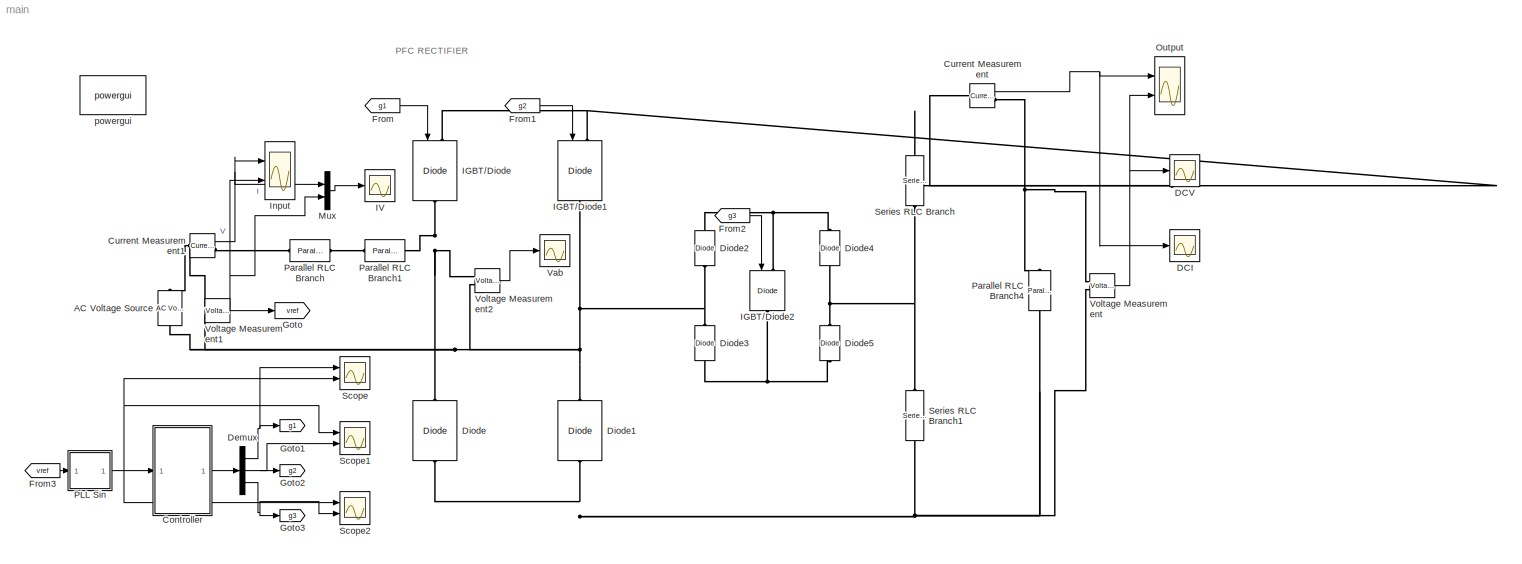
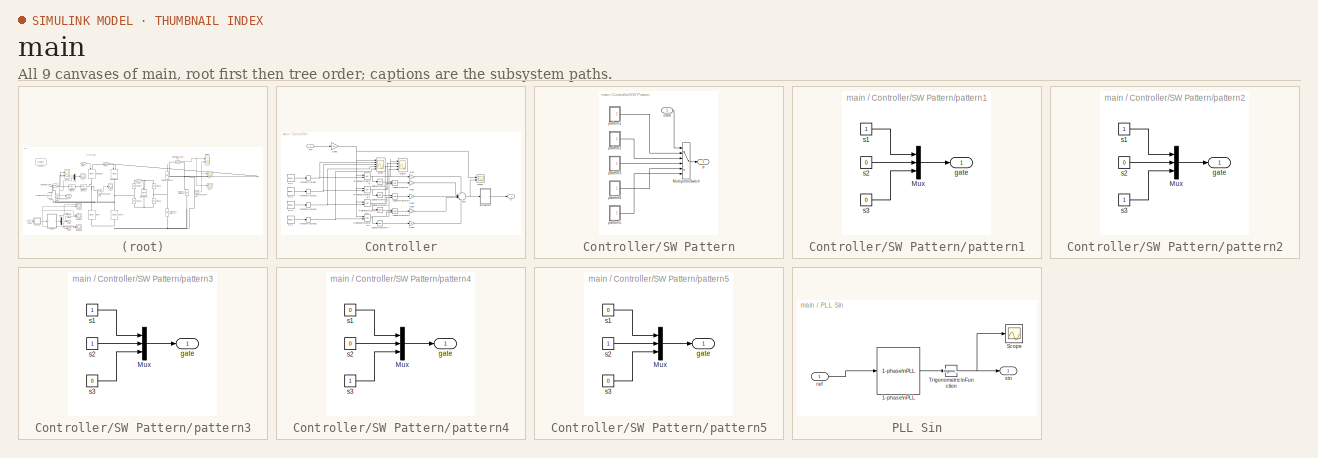
[diagram: thumbnail index - all 9 canvases of the model, root first then tree order]
MODEL main
KIND model
CONFIG InitFcn = Ts=50e-6;\nfs=5e3;\nfreq=60;\n
BLOCK [Reference] AC Voltage Source  REF=powerlib/Electrical\nSources/AC Voltage Source
  Amplitude = 200
  DialogController = POWERSYS.PowerSysDialog
  Frequency = freq
  FunctionWithSeparateData = off
  Measurements = None
  Phase = 0
  Ports = [0, 0, 0, 0, 0, 1, 1]
  RTWMemSecDataConstants = Inherit from model
  RTWMemSecDataInternal = Inherit from model
  RTWMemSecDataParameters = Inherit from model
  RTWMemSecFuncExecute = Inherit from model
  RTWMemSecFuncInitTerm = Inherit from model
  SID = 1
  SampleTime = 0
  ShowPortLabels = FromPortIcon
  SourceBlock = powerlib/Electrical\nSources/AC Voltage Source
  SourceType = AC Voltage Source
  SystemSampleTime = -1
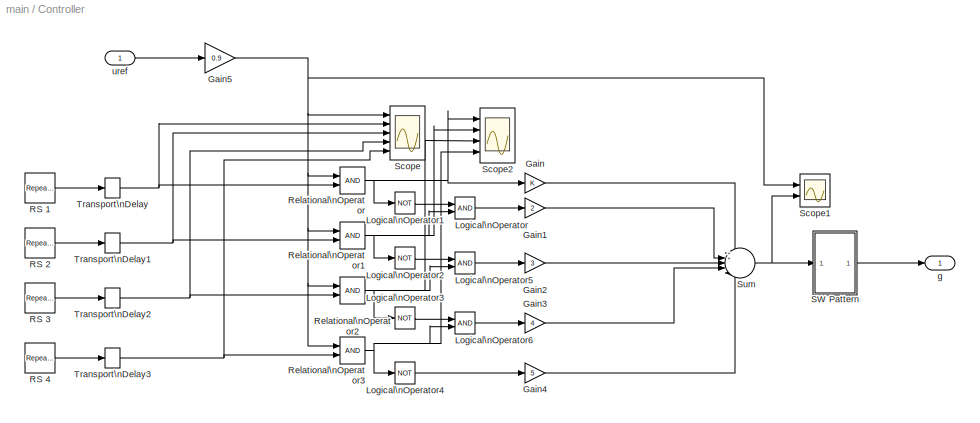
BLOCK [SubSystem] Controller
  FunctionWithSeparateData = off
  MaskHideContents = off
  MinAlgLoopOccurrences = off
  Opaque = off
  Ports = [1, 1]
  PropExecContextOutsideSubsystem = off
  RTWSystemCode = Auto
  RequestExecContextInheritance = off
  SID = 82
BLOCK [Gain] Controller/Gain
  OutDataTypeMode = Inherit via internal rule
  OutDataTypeStr = Inherit: Inherit via internal rule
  ParamDataTypeStr = Inherit: Inherit via internal rule
  ParameterDataTypeMode = Inherit via internal rule
  SID = 112
  SaturateOnIntegerOverflow = off
BLOCK [Gain] Controller/Gain1
  Gain = 2
  OutDataTypeMode = Inherit via internal rule
  OutDataTypeStr = Inherit: Inherit via internal rule
  ParamDataTypeStr = Inherit: Inherit via internal rule
  ParameterDataTypeMode = Inherit via internal rule
  SID = 113
  SaturateOnIntegerOverflow = off
BLOCK [Gain] Controller/Gain2
  Gain = 3
  OutDataTypeMode = Inherit via internal rule
  OutDataTypeStr = Inherit: Inherit via internal rule
  ParamDataTypeStr = Inherit: Inherit via internal rule
  ParameterDataTypeMode = Inherit via internal rule
  SID = 114
  SaturateOnIntegerOverflow = off
BLOCK [Gain] Controller/Gain3
  Gain = 4
  OutDataTypeMode = Inherit via internal rule
  OutDataTypeStr = Inherit: Inherit via internal rule
  ParamDataTypeStr = Inherit: Inherit via internal rule
  ParameterDataTypeMode = Inherit via internal rule
  SID = 115
  SaturateOnIntegerOverflow = off
BLOCK [Gain] Controller/Gain4
  Gain = 5
  OutDataTypeMode = Inherit via internal rule
  OutDataTypeStr = Inherit: Inherit via internal rule
  ParamDataTypeStr = Inherit: Inherit via internal rule
  ParameterDataTypeMode = Inherit via internal rule
  SID = 116
  SaturateOnIntegerOverflow = off
BLOCK [Gain] Controller/Gain5
  Gain = 0.9
  OutDataTypeMode = Inherit via internal rule
  OutDataTypeStr = Inherit: Inherit via internal rule
  ParamDataTypeStr = Inherit: Inherit via internal rule
  ParameterDataTypeMode = Inherit via internal rule
  SID = 121
  SaturateOnIntegerOverflow = off
BLOCK [Logic] Controller/Logical\nOperator
  AllPortsSameDT = off
  OutDataTypeMode = boolean
  OutDataTypeStr = boolean
  Ports = [2, 1]
  SID = 68
BLOCK [Logic] Controller/Logical\nOperator1
  AllPortsSameDT = off
  Operator = NOT
  OutDataTypeMode = boolean
  OutDataTypeStr = boolean
  Ports = [1, 1]
  SID = 69
BLOCK [Logic] Controller/Logical\nOperator2
  AllPortsSameDT = off
  Operator = NOT
  OutDataTypeMode = boolean
  OutDataTypeStr = boolean
  Ports = [1, 1]
  SID = 70
BLOCK [Logic] Controller/Logical\nOperator3
  AllPortsSameDT = off
  Operator = NOT
  OutDataTypeMode = boolean
  OutDataTypeStr = boolean
  Ports = [1, 1]
  SID = 71
BLOCK [Logic] Controller/Logical\nOperator4
  AllPortsSameDT = off
  Operator = NOT
  OutDataTypeMode = boolean
  OutDataTypeStr = boolean
  Ports = [1, 1]
  SID = 72
BLOCK [Logic] Controller/Logical\nOperator5
  AllPortsSameDT = off
  OutDataTypeMode = boolean
  OutDataTypeStr = boolean
  Ports = [2, 1]
  SID = 74
BLOCK [Logic] Controller/Logical\nOperator6
  AllPortsSameDT = off
  OutDataTypeMode = boolean
  OutDataTypeStr = boolean
  Ports = [2, 1]
  SID = 75
BLOCK [Reference] Controller/RS 1  REF=simulink/Sources/Repeating\nSequence
  FunctionWithSeparateData = off
  Ports = [0, 1]
  RTWMemSecDataConstants = Inherit from model
  RTWMemSecDataInternal = Inherit from model
  RTWMemSecDataParameters = Inherit from model
  RTWMemSecFuncExecute = Inherit from model
  RTWMemSecFuncInitTerm = Inherit from model
  SID = 28
  ShowPortLabels = FromPortIcon
  SourceBlock = simulink/Sources/Repeating\nSequence
  SourceType = Repeating table
  SystemSampleTime = -1
  rep_seq_t = [0 (1/(fs*4))*1  (1/(fs*4))*2  (1/(fs*4))*3  (1/(fs*4))*4]
  rep_seq_y = [0.5 1 0.5 1 0.5]
BLOCK [Reference] Controller/RS 2  REF=simulink/Sources/Repeating\nSequence
  FunctionWithSeparateData = off
  Ports = [0, 1]
  RTWMemSecDataConstants = Inherit from model
  RTWMemSecDataInternal = Inherit from model
  RTWMemSecDataParameters = Inherit from model
  RTWMemSecFuncExecute = Inherit from model
  RTWMemSecFuncInitTerm = Inherit from model
  SID = 29
  ShowPortLabels = FromPortIcon
  SourceBlock = simulink/Sources/Repeating\nSequence
  SourceType = Repeating table
  SystemSampleTime = -1
  rep_seq_t = [0 (1/(fs*4))*1  (1/(fs*4))*2  (1/(fs*4))*3  (1/(fs*4))*4]
  rep_seq_y = [0 0.5 0 0.5 0]
BLOCK [Reference] Controller/RS 3  REF=simulink/Sources/Repeating\nSequence
  FunctionWithSeparateData = off
  Ports = [0, 1]
  RTWMemSecDataConstants = Inherit from model
  RTWMemSecDataInternal = Inherit from model
  RTWMemSecDataParameters = Inherit from model
  RTWMemSecFuncExecute = Inherit from model
  RTWMemSecFuncInitTerm = Inherit from model
  SID = 30
  ShowPortLabels = FromPortIcon
  SourceBlock = simulink/Sources/Repeating\nSequence
  SourceType = Repeating table
  SystemSampleTime = -1
  rep_seq_t = [0 (1/(fs*4))*1  (1/(fs*4))*2  (1/(fs*4))*3  (1/(fs*4))*4]
  rep_seq_y = [-0.5 0 -0.5 0 -0.5]
BLOCK [Reference] Controller/RS 4  REF=simulink/Sources/Repeating\nSequence
  FunctionWithSeparateData = off
  Ports = [0, 1]
  RTWMemSecDataConstants = Inherit from model
  RTWMemSecDataInternal = Inherit from model
  RTWMemSecDataParameters = Inherit from model
  RTWMemSecFuncExecute = Inherit from model
  RTWMemSecFuncInitTerm = Inherit from model
  SID = 31
  ShowPortLabels = FromPortIcon
  SourceBlock = simulink/Sources/Repeating\nSequence
  SourceType = Repeating table
  SystemSampleTime = -1
  rep_seq_t = [0 (1/(fs*4))*1  (1/(fs*4))*2  (1/(fs*4))*3  (1/(fs*4))*4]
  rep_seq_y = [-1 -0.5 -1 -0.5 -1]
BLOCK [RelationalOperator] Controller/Relational\nOperator
  InputSameDT = off
  LogicOutDataTypeMode = boolean
  OutDataTypeStr = boolean
  Ports = [2, 1]
  SID = 32
  ZeroCross = off
BLOCK [RelationalOperator] Controller/Relational\nOperator1
  InputSameDT = off
  LogicOutDataTypeMode = boolean
  OutDataTypeStr = boolean
  Ports = [2, 1]
  SID = 33
  ZeroCross = off
BLOCK [RelationalOperator] Controller/Relational\nOperator2
  InputSameDT = off
  LogicOutDataTypeMode = boolean
  OutDataTypeStr = boolean
  Ports = [2, 1]
  SID = 34
  ZeroCross = off
BLOCK [RelationalOperator] Controller/Relational\nOperator3
  InputSameDT = off
  LogicOutDataTypeMode = boolean
  OutDataTypeStr = boolean
  Ports = [2, 1]
  SID = 35
  ZeroCross = off
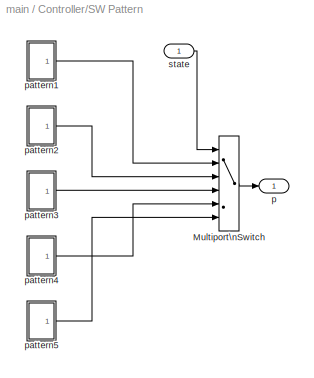
BLOCK [SubSystem] Controller/SW Pattern
  FunctionWithSeparateData = off
  MaskHideContents = off
  MinAlgLoopOccurrences = off
  Opaque = off
  Ports = [1, 1]
  PropExecContextOutsideSubsystem = off
  RTWSystemCode = Auto
  RequestExecContextInheritance = off
  SID = 78
BLOCK [MultiPortSwitch] Controller/SW Pattern/Multiport\nSwitch
  InputSameDT = off
  Inputs = 5
  Ports = [6, 1]
  SID = 77
  SaturateOnIntegerOverflow = off
  zeroidx = off
BLOCK [Outport] Controller/SW Pattern/p
  IconDisplay = Port number
  SID = 80
BLOCK [SubSystem] Controller/SW Pattern/pattern1
  FunctionWithSeparateData = off
  MaskHideContents = off
  MinAlgLoopOccurrences = off
  Opaque = off
  Ports = [0, 1]
  PropExecContextOutsideSubsystem = off
  RTWSystemCode = Auto
  RequestExecContextInheritance = off
  SID = 42
BLOCK [Mux] Controller/SW Pattern/pattern1/Mux
  DisplayOption = bar
  Inputs = 3
  Ports = [3, 1]
  SID = 40
BLOCK [Outport] Controller/SW Pattern/pattern1/gate
  IconDisplay = Port number
  SID = 43
BLOCK [Constant] Controller/SW Pattern/pattern1/s1
  SID = 37
BLOCK [Constant] Controller/SW Pattern/pattern1/s2
  SID = 38
  Value = 0
BLOCK [Constant] Controller/SW Pattern/pattern1/s3
  SID = 39
  Value = 0
BLOCK [SubSystem] Controller/SW Pattern/pattern2
  FunctionWithSeparateData = off
  MaskHideContents = off
  MinAlgLoopOccurrences = off
  Opaque = off
  Ports = [0, 1]
  PropExecContextOutsideSubsystem = off
  RTWSystemCode = Auto
  RequestExecContextInheritance = off
  SID = 44
BLOCK [Mux] Controller/SW Pattern/pattern2/Mux
  DisplayOption = bar
  Inputs = 3
  Ports = [3, 1]
  SID = 45
BLOCK [Outport] Controller/SW Pattern/pattern2/gate
  IconDisplay = Port number
  SID = 49
BLOCK [Constant] Controller/SW Pattern/pattern2/s1
  SID = 46
BLOCK [Constant] Controller/SW Pattern/pattern2/s2
  SID = 47
  Value = 0
BLOCK [Constant] Controller/SW Pattern/pattern2/s3
  SID = 48
BLOCK [SubSystem] Controller/SW Pattern/pattern3
  FunctionWithSeparateData = off
  MaskHideContents = off
  MinAlgLoopOccurrences = off
  Opaque = off
  Ports = [0, 1]
  PropExecContextOutsideSubsystem = off
  RTWSystemCode = Auto
  RequestExecContextInheritance = off
  SID = 50
BLOCK [Mux] Controller/SW Pattern/pattern3/Mux
  DisplayOption = bar
  Inputs = 3
  Ports = [3, 1]
  SID = 51
BLOCK [Outport] Controller/SW Pattern/pattern3/gate
  IconDisplay = Port number
  SID = 55
BLOCK [Constant] Controller/SW Pattern/pattern3/s1
  SID = 52
BLOCK [Constant] Controller/SW Pattern/pattern3/s2
  SID = 53
BLOCK [Constant] Controller/SW Pattern/pattern3/s3
  SID = 54
  Value = 0
BLOCK [SubSystem] Controller/SW Pattern/pattern4
  FunctionWithSeparateData = off
  MaskHideContents = off
  MinAlgLoopOccurrences = off
  Opaque = off
  Ports = [0, 1]
  PropExecContextOutsideSubsystem = off
  RTWSystemCode = Auto
  RequestExecContextInheritance = off
  SID = 56
BLOCK [Mux] Controller/SW Pattern/pattern4/Mux
  DisplayOption = bar
  Inputs = 3
  Ports = [3, 1]
  SID = 57
BLOCK [Outport] Controller/SW Pattern/pattern4/gate
  IconDisplay = Port number
  SID = 61
BLOCK [Constant] Controller/SW Pattern/pattern4/s1
  SID = 58
  Value = 0
BLOCK [Constant] Controller/SW Pattern/pattern4/s2
  SID = 59
  Value = 0
BLOCK [Constant] Controller/SW Pattern/pattern4/s3
  SID = 60
BLOCK [SubSystem] Controller/SW Pattern/pattern5
  FunctionWithSeparateData = off
  MaskHideContents = off
  MinAlgLoopOccurrences = off
  Opaque = off
  Ports = [0, 1]
  PropExecContextOutsideSubsystem = off
  RTWSystemCode = Auto
  RequestExecContextInheritance = off
  SID = 62
BLOCK [Mux] Controller/SW Pattern/pattern5/Mux
  DisplayOption = bar
  Inputs = 3
  Ports = [3, 1]
  SID = 63
BLOCK [Outport] Controller/SW Pattern/pattern5/gate
  IconDisplay = Port number
  SID = 67
BLOCK [Constant] Controller/SW Pattern/pattern5/s1
  SID = 64
  Value = 0
BLOCK [Constant] Controller/SW Pattern/pattern5/s2
  SID = 65
BLOCK [Constant] Controller/SW Pattern/pattern5/s3
  SID = 66
  Value = 0
BLOCK [Inport] Controller/SW Pattern/state
  IconDisplay = Port number
  SID = 79
BLOCK [Scope] Controller/Scope
  DataFormat = StructureWithTime
  Floating = off
  LimitDataPoints = off
  NumInputPorts = 5
  Ports = [5]
  SID = 103
  SaveName = ScopeData5
  YMax = 1.29563~5~5~5~5
  YMin = -1.32133~-5~-5~-5~-5
BLOCK [Scope] Controller/Scope1
  DataFormat = StructureWithTime
  Floating = off
  LimitDataPoints = off
  NumInputPorts = 2
  Ports = [2]
  SID = 104
  SaveName = ScopeData6
  YMax = 5.75~5
  YMin = -1.75~-5
BLOCK [Scope] Controller/Scope2
  DataFormat = StructureWithTime
  Floating = off
  LimitDataPoints = off
  NumInputPorts = 4
  Ports = [4]
  SID = 105
  SaveName = ScopeData7
  YMax = 1.125~5~5~5
  YMin = -0.125~-5~-5~-5
BLOCK [Sum] Controller/Sum
  IconShape = round
  InputSameDT = off
  Inputs = 5
  OutDataTypeMode = Inherit via internal rule
  OutDataTypeStr = Inherit: Inherit via internal rule
  Ports = [5, 1]
  SID = 73
  SaturateOnIntegerOverflow = off
BLOCK [TransportDelay] Controller/Transport\nDelay
  DelayTime = (1/(fs*8))*1
  SID = 123
BLOCK [TransportDelay] Controller/Transport\nDelay1
  DelayTime = (1/(fs*8))*1
  SID = 124
BLOCK [TransportDelay] Controller/Transport\nDelay2
  DelayTime = (1/(fs*8))*1
  SID = 125
BLOCK [TransportDelay] Controller/Transport\nDelay3
  DelayTime = (1/(fs*8))*1
  SID = 126
BLOCK [Outport] Controller/g
  IconDisplay = Port number
  SID = 84
BLOCK [Inport] Controller/uref
  IconDisplay = Port number
  SID = 83
BLOCK [Reference] Current Measurement  REF=powerlib/Measurements/Current Measurement
  DialogController = POWERSYS.PowerSysDialog
  FunctionWithSeparateData = off
  OutputType = Complex
  PSBequivalent = 0
  PhasorSimulation = off
  Ports = [0, 1, 0, 0, 0, 1, 1]
  RTWMemSecDataConstants = Inherit from model
  RTWMemSecDataInternal = Inherit from model
  RTWMemSecDataParameters = Inherit from model
  RTWMemSecFuncExecute = Inherit from model
  RTWMemSecFuncInitTerm = Inherit from model
  SID = 16
  ShowPortLabels = FromPortIcon
  SourceBlock = powerlib/Measurements/Current Measurement
  SourceType = Current Measurement
  SystemSampleTime = -1
  UserDataPersistent = on
BLOCK [Reference] Current Measurement1  REF=powerlib/Measurements/Current Measurement
  DialogController = POWERSYS.PowerSysDialog
  FunctionWithSeparateData = off
  OutputType = Complex
  PSBequivalent = 0
  PhasorSimulation = off
  Ports = [0, 1, 0, 0, 0, 1, 1]
  RTWMemSecDataConstants = Inherit from model
  RTWMemSecDataInternal = Inherit from model
  RTWMemSecDataParameters = Inherit from model
  RTWMemSecFuncExecute = Inherit from model
  RTWMemSecFuncInitTerm = Inherit from model
  SID = 18
  ShowPortLabels = FromPortIcon
  SourceBlock = powerlib/Measurements/Current Measurement
  SourceType = Current Measurement
  SystemSampleTime = -1
  UserDataPersistent = on
BLOCK [Scope] DCI
  DataFormat = StructureWithTime
  Floating = off
  LimitDataPoints = off
  NumInputPorts = 1
  Ports = [1]
  SID = 120
  SaveName = ScopeData10
  YMax = 4.09541
  YMin = -0.45508
BLOCK [Scope] DCV
  DataFormat = StructureWithTime
  Floating = off
  LimitDataPoints = off
  NumInputPorts = 1
  Ports = [1]
  SID = 119
  SaveName = ScopeData9
  YMax = 327.63308
  YMin = -36.40671
BLOCK [Demux] Demux
  DisplayOption = bar
  Outputs = 3
  Ports = [1, 3]
  SID = 88
BLOCK [Reference] Diode  REF=powerlib/Power\nElectronics/Diode
  Cs = 250e-9
  DialogController = POWERSYS.PowerSysDialog
  FunctionWithSeparateData = off
  IC = 0
  Lon = 0
  Measurements = off
  Ports = [0, 0, 0, 0, 0, 1, 1]
  RTWMemSecDataConstants = Inherit from model
  RTWMemSecDataInternal = Inherit from model
  RTWMemSecDataParameters = Inherit from model
  RTWMemSecFuncExecute = Inherit from model
  RTWMemSecFuncInitTerm = Inherit from model
  Ron = 0.001
  Rs = 500
  SID = 6
  ShowPortLabels = FromPortIcon
  SourceBlock = powerlib/Power\nElectronics/Diode
  SourceType = Diode
  SystemSampleTime = -1
  UseSnubber = off
  Vf = 0.8
BLOCK [Reference] Diode1  REF=powerlib/Power\nElectronics/Diode
  Cs = 250e-9
  DialogController = POWERSYS.PowerSysDialog
  FunctionWithSeparateData = off
  IC = 0
  Lon = 0
  Measurements = off
  Ports = [0, 0, 0, 0, 0, 1, 1]
  RTWMemSecDataConstants = Inherit from model
  RTWMemSecDataInternal = Inherit from model
  RTWMemSecDataParameters = Inherit from model
  RTWMemSecFuncExecute = Inherit from model
  RTWMemSecFuncInitTerm = Inherit from model
  Ron = 0.001
  Rs = 500
  SID = 7
  ShowPortLabels = FromPortIcon
  SourceBlock = powerlib/Power\nElectronics/Diode
  SourceType = Diode
  SystemSampleTime = -1
  UseSnubber = off
  Vf = 0.8
BLOCK [Reference] Diode2  REF=powerlib/Power\nElectronics/Diode
  Cs = 250e-9
  DialogController = POWERSYS.PowerSysDialog
  FunctionWithSeparateData = off
  IC = 0
  Lon = 0
  Measurements = off
  Ports = [0, 0, 0, 0, 0, 1, 1]
  RTWMemSecDataConstants = Inherit from model
  RTWMemSecDataInternal = Inherit from model
  RTWMemSecDataParameters = Inherit from model
  RTWMemSecFuncExecute = Inherit from model
  RTWMemSecFuncInitTerm = Inherit from model
  Ron = 0.001
  Rs = 500
  SID = 8
  ShowPortLabels = FromPortIcon
  SourceBlock = powerlib/Power\nElectronics/Diode
  SourceType = Diode
  SystemSampleTime = -1
  UseSnubber = off
  Vf = 0.8
BLOCK [Reference] Diode3  REF=powerlib/Power\nElectronics/Diode
  Cs = 250e-9
  DialogController = POWERSYS.PowerSysDialog
  FunctionWithSeparateData = off
  IC = 0
  Lon = 0
  Measurements = off
  Ports = [0, 0, 0, 0, 0, 1, 1]
  RTWMemSecDataConstants = Inherit from model
  RTWMemSecDataInternal = Inherit from model
  RTWMemSecDataParameters = Inherit from model
  RTWMemSecFuncExecute = Inherit from model
  RTWMemSecFuncInitTerm = Inherit from model
  Ron = 0.001
  Rs = 500
  SID = 9
  ShowPortLabels = FromPortIcon
  SourceBlock = powerlib/Power\nElectronics/Diode
  SourceType = Diode
  SystemSampleTime = -1
  UseSnubber = off
  Vf = 0.8
BLOCK [Reference] Diode4  REF=powerlib/Power\nElectronics/Diode
  Cs = 250e-9
  DialogController = POWERSYS.PowerSysDialog
  FunctionWithSeparateData = off
  IC = 0
  Lon = 0
  Measurements = off
  Ports = [0, 0, 0, 0, 0, 1, 1]
  RTWMemSecDataConstants = Inherit from model
  RTWMemSecDataInternal = Inherit from model
  RTWMemSecDataParameters = Inherit from model
  RTWMemSecFuncExecute = Inherit from model
  RTWMemSecFuncInitTerm = Inherit from model
  Ron = 0.001
  Rs = 500
  SID = 10
  ShowPortLabels = FromPortIcon
  SourceBlock = powerlib/Power\nElectronics/Diode
  SourceType = Diode
  SystemSampleTime = -1
  UseSnubber = off
  Vf = 0.8
BLOCK [Reference] Diode5  REF=powerlib/Power\nElectronics/Diode
  Cs = 250e-9
  DialogController = POWERSYS.PowerSysDialog
  FunctionWithSeparateData = off
  IC = 0
  Lon = 0
  Measurements = off
  Ports = [0, 0, 0, 0, 0, 1, 1]
  RTWMemSecDataConstants = Inherit from model
  RTWMemSecDataInternal = Inherit from model
  RTWMemSecDataParameters = Inherit from model
  RTWMemSecFuncExecute = Inherit from model
  RTWMemSecFuncInitTerm = Inherit from model
  Ron = 0.001
  Rs = 500
  SID = 11
  ShowPortLabels = FromPortIcon
  SourceBlock = powerlib/Power\nElectronics/Diode
  SourceType = Diode
  SystemSampleTime = -1
  UseSnubber = off
  Vf = 0.8
BLOCK [From] From
  GotoTag = g1
  SID = 24
BLOCK [From] From1
  GotoTag = g2
  SID = 25
BLOCK [From] From2
  GotoTag = g3
  SID = 26
BLOCK [From] From3
  GotoTag = vref
  SID = 86
BLOCK [Goto] Goto
  GotoTag = vref
  SID = 27
  TagVisibility = local
BLOCK [Goto] Goto1
  GotoTag = g1
  SID = 89
  TagVisibility = local
BLOCK [Goto] Goto2
  GotoTag = g2
  SID = 90
  TagVisibility = local
BLOCK [Goto] Goto3
  GotoTag = g3
  SID = 91
  TagVisibility = local
BLOCK [Reference] IGBT//Diode  REF=powerlib/Power\nElectronics/IGBT//Diode
  Cs = inf
  DialogController = POWERSYS.PowerSysDialog
  FunctionWithSeparateData = off
  Measurements = off
  Ports = [1, 0, 0, 0, 0, 1, 1]
  RTWMemSecDataConstants = Inherit from model
  RTWMemSecDataInternal = Inherit from model
  RTWMemSecDataParameters = Inherit from model
  RTWMemSecFuncExecute = Inherit from model
  RTWMemSecFuncInitTerm = Inherit from model
  Ron = 1e-3
  Rs = 1e5
  SID = 4
  ShowPortLabels = FromPortIcon
  SourceBlock = powerlib/Power\nElectronics/IGBT//Diode
  SourceType = IGBT/Diode
  SystemSampleTime = -1
BLOCK [Reference] IGBT//Diode1  REF=powerlib/Power\nElectronics/IGBT//Diode
  Cs = inf
  DialogController = POWERSYS.PowerSysDialog
  FunctionWithSeparateData = off
  Measurements = off
  Ports = [1, 0, 0, 0, 0, 1, 1]
  RTWMemSecDataConstants = Inherit from model
  RTWMemSecDataInternal = Inherit from model
  RTWMemSecDataParameters = Inherit from model
  RTWMemSecFuncExecute = Inherit from model
  RTWMemSecFuncInitTerm = Inherit from model
  Ron = 1e-3
  Rs = 1e5
  SID = 5
  ShowPortLabels = FromPortIcon
  SourceBlock = powerlib/Power\nElectronics/IGBT//Diode
  SourceType = IGBT/Diode
  SystemSampleTime = -1
BLOCK [Reference] IGBT//Diode2  REF=powerlib/Power\nElectronics/IGBT//Diode
  Cs = inf
  DialogController = POWERSYS.PowerSysDialog
  FunctionWithSeparateData = off
  Measurements = off
  Ports = [1, 0, 0, 0, 0, 1, 1]
  RTWMemSecDataConstants = Inherit from model
  RTWMemSecDataInternal = Inherit from model
  RTWMemSecDataParameters = Inherit from model
  RTWMemSecFuncExecute = Inherit from model
  RTWMemSecFuncInitTerm = Inherit from model
  Ron = 1e-3
  Rs = 1e5
  SID = 12
  ShowPortLabels = FromPortIcon
  SourceBlock = powerlib/Power\nElectronics/IGBT//Diode
  SourceType = IGBT/Diode
  SystemSampleTime = -1
BLOCK [Scope] IV
  DataFormat = StructureWithTime
  Floating = off
  LimitDataPoints = off
  NumInputPorts = 1
  Ports = [1]
  SID = 133
  SaveName = ScopeData12
  YMax = 299.99485
  YMin = -346.4025
BLOCK [Scope] Input
  DataFormat = StructureWithTime
  Floating = off
  LimitDataPoints = off
  NumInputPorts = 2
  Ports = [2]
  SID = 20
  YMax = 53.35628~5
  YMin = -97.24613~-5
BLOCK [Mux] Mux
  DisplayOption = bar
  Inputs = 2
  Ports = [2, 1]
  SID = 132
BLOCK [Scope] Output
  DataFormat = StructureWithTime
  Floating = off
  LimitDataPoints = off
  NumInputPorts = 2
  Ports = [2]
  SID = 21
  SaveName = ScopeData1
  TimeRange = 1
  YMax = 327.63308~5
  YMin = -36.40671~-5
BLOCK [SubSystem] PLL Sin
  FunctionWithSeparateData = off
  MaskHideContents = off
  MinAlgLoopOccurrences = off
  Opaque = off
  Ports = [1, 1]
  PropExecContextOutsideSubsystem = off
  RTWSystemCode = Auto
  RequestExecContextInheritance = off
  SID = 96
BLOCK [Reference] PLL Sin/1-phase\nPLL  REF=powerlib_extras/Control \nBlocks/1-phase\nPLL
  AGC = off
  DialogController = POWERSYS.PowerSysDialog
  FunctionWithSeparateData = off
  ParK = [ 180 3200 1 ]
  Par_Init = [0 freq]
  Ports = [1, 3]
  RTWMemSecDataConstants = Inherit from model
  RTWMemSecDataInternal = Inherit from model
  RTWMemSecDataParameters = Inherit from model
  RTWMemSecFuncExecute = Inherit from model
  RTWMemSecFuncInitTerm = Inherit from model
  SID = 131
  ShowPortLabels = FromPortIcon
  SourceBlock = powerlib_extras/Control \nBlocks/1-phase\nPLL
  SourceType = 1-phase PLL
  SystemSampleTime = -1
BLOCK [Scope] PLL Sin/Scope
  DataFormat = StructureWithTime
  Floating = off
  NumInputPorts = 1
  Ports = [1]
  SID = 130
  SampleTime = 0
  SaveName = ScopeData11
BLOCK [Trigonometry] PLL Sin/Trigonometric\nFunction
  Ports = [1, 1]
  SID = 95
BLOCK [Inport] PLL Sin/ref
  IconDisplay = Port number
  SID = 99
BLOCK [Outport] PLL Sin/sin
  IconDisplay = Port number
  SID = 98
BLOCK [Reference] Parallel RLC Branch  REF=powerlib/Elements/Parallel RLC Branch
  AttributesFormatString = \\n
  BranchType = L
  Capacitance = 1e-6
  DialogController = POWERSYS.PowerSysDialog
  Inductance = 2.5e-3
  InitialCurrent = 0
  InitialVoltage = 0
  LConnTagsString = a
  LeftPortType = p1
  Measurements = None
  PhysicalDomain = powersysdomain
  Ports = [0, 0, 0, 0, 0, 1, 1]
  RConnTagsString = __new0
  Resistance = 1
  RightPortType = p1
  SID = 2
  SetiL0 = off
  Setx0 = off
  SourceBlock = powerlib/Elements/Parallel RLC Branch
  SourceType = Parallel RLC Branch
  SubClassName = unknown
BLOCK [Reference] Parallel RLC Branch1  REF=powerlib/Elements/Parallel RLC Branch
  AttributesFormatString = \\n
  BranchType = R
  Capacitance = 1e-6
  DialogController = POWERSYS.PowerSysDialog
  Inductance = 1e-3
  InitialCurrent = 0
  InitialVoltage = 0
  LConnTagsString = a
  LeftPortType = p1
  Measurements = None
  PhysicalDomain = powersysdomain
  Ports = [0, 0, 0, 0, 0, 1, 1]
  RConnTagsString = __new0
  Resistance = 1
  RightPortType = p1
  SID = 3
  SetiL0 = off
  Setx0 = off
  SourceBlock = powerlib/Elements/Parallel RLC Branch
  SourceType = Parallel RLC Branch
  SubClassName = unknown
BLOCK [Reference] Parallel RLC Branch4  REF=powerlib/Elements/Parallel RLC Branch
  AttributesFormatString = \\n
  BranchType = R
  Capacitance = 1e-6
  DialogController = POWERSYS.PowerSysDialog
  Inductance = 1e-3
  InitialCurrent = 0
  InitialVoltage = 0
  LConnTagsString = a
  LeftPortType = p1
  Measurements = None
  PhysicalDomain = powersysdomain
  Ports = [0, 0, 0, 0, 0, 1, 1]
  RConnTagsString = __new0
  Resistance = 80
  RightPortType = p1
  SID = 15
  SetiL0 = off
  Setx0 = off
  SourceBlock = powerlib/Elements/Parallel RLC Branch
  SourceType = Parallel RLC Branch
  SubClassName = unknown
BLOCK [Scope] Scope
  DataFormat = StructureWithTime
  Floating = off
  LimitDataPoints = off
  NumInputPorts = 2
  Ports = [2]
  SID = 100
  SaveName = ScopeData2
  YMax = 1.25~5
  YMin = -1.25~-5
BLOCK [Scope] Scope1
  DataFormat = StructureWithTime
  Floating = off
  LimitDataPoints = off
  NumInputPorts = 2
  Ports = [2]
  SID = 101
  SaveName = ScopeData3
  YMax = 1.25~5
  YMin = -1.25~-5
BLOCK [Scope] Scope2
  DataFormat = StructureWithTime
  Floating = off
  LimitDataPoints = off
  NumInputPorts = 2
  Ports = [2]
  SID = 102
  SaveName = ScopeData4
  YMax = 1.25~5
  YMin = -1.25~-5
BLOCK [Reference] Series RLC Branch  REF=powerlib/Elements/Series RLC Branch
  BranchType = C
  Capacitance = 1000e-6
  DialogController = POWERSYS.PowerSysDialog
  Inductance = 1e-3
  InitialCurrent = 0
  InitialVoltage = 0
  LConnTagsString = __new0
  LeftPortType = p1
  Measurements = None
  PhysicalDomain = powersysdomain
  Ports = [0, 0, 0, 0, 0, 1, 1]
  RConnTagsString = __new0
  Resistance = 1
  RightPortType = p1
  SID = 127
  SetiL0 = off
  Setx0 = off
  SourceBlock = powerlib/Elements/Series RLC Branch
  SourceType = Series RLC Branch
  SubClassName = unknown
BLOCK [Reference] Series RLC Branch1  REF=powerlib/Elements/Series RLC Branch
  BranchType = C
  Capacitance = 1000e-6
  DialogController = POWERSYS.PowerSysDialog
  Inductance = 1e-3
  InitialCurrent = 0
  InitialVoltage = 0
  LConnTagsString = __new0
  LeftPortType = p1
  Measurements = None
  PhysicalDomain = powersysdomain
  Ports = [0, 0, 0, 0, 0, 1, 1]
  RConnTagsString = __new0
  Resistance = 1
  RightPortType = p1
  SID = 128
  SetiL0 = off
  Setx0 = off
  SourceBlock = powerlib/Elements/Series RLC Branch
  SourceType = Series RLC Branch
  SubClassName = unknown
BLOCK [Scope] Vab
  DataFormat = StructureWithTime
  Floating = off
  LimitDataPoints = off
  NumInputPorts = 1
  Ports = [1]
  SID = 118
  SaveName = ScopeData8
  YMax = 299.99485
  YMin = -346.4025
BLOCK [Reference] Voltage Measurement  REF=powerlib/Measurements/Voltage Measurement
  DialogController = POWERSYS.PowerSysDialog
  FunctionWithSeparateData = off
  OutputType = Complex
  PSBequivalent = 0
  PhasorSimulation = off
  Ports = [0, 1, 0, 0, 0, 2]
  RTWMemSecDataConstants = Inherit from model
  RTWMemSecDataInternal = Inherit from model
  RTWMemSecDataParameters = Inherit from model
  RTWMemSecFuncExecute = Inherit from model
  RTWMemSecFuncInitTerm = Inherit from model
  SID = 17
  ShowPortLabels = FromPortIcon
  SourceBlock = powerlib/Measurements/Voltage Measurement
  SourceType = Voltage Measurement
  SystemSampleTime = -1
  UserDataPersistent = on
BLOCK [Reference] Voltage Measurement1  REF=powerlib/Measurements/Voltage Measurement
  DialogController = POWERSYS.PowerSysDialog
  FunctionWithSeparateData = off
  OutputType = Complex
  PSBequivalent = 0
  PhasorSimulation = off
  Ports = [0, 1, 0, 0, 0, 2]
  RTWMemSecDataConstants = Inherit from model
  RTWMemSecDataInternal = Inherit from model
  RTWMemSecDataParameters = Inherit from model
  RTWMemSecFuncExecute = Inherit from model
  RTWMemSecFuncInitTerm = Inherit from model
  SID = 19
  ShowPortLabels = FromPortIcon
  SourceBlock = powerlib/Measurements/Voltage Measurement
  SourceType = Voltage Measurement
  SystemSampleTime = -1
  UserDataPersistent = on
BLOCK [Reference] Voltage Measurement2  REF=powerlib/Measurements/Voltage Measurement
  DialogController = POWERSYS.PowerSysDialog
  FunctionWithSeparateData = off
  OutputType = Complex
  PSBequivalent = 0
  PhasorSimulation = off
  Ports = [0, 1, 0, 0, 0, 2]
  RTWMemSecDataConstants = Inherit from model
  RTWMemSecDataInternal = Inherit from model
  RTWMemSecDataParameters = Inherit from model
  RTWMemSecFuncExecute = Inherit from model
  RTWMemSecFuncInitTerm = Inherit from model
  SID = 117
  ShowPortLabels = FromPortIcon
  SourceBlock = powerlib/Measurements/Voltage Measurement
  SourceType = Voltage Measurement
  SystemSampleTime = -1
  UserDataPersistent = on
BLOCK [Reference] powergui  REF=powerlib/powergui
  DisableRonSwitches = off
  DisableSnubberDevices = off
  DisableVfSwitches = off
  DisplayEquations = off
  DisplayStyle = 1
  EnableUseOfTLC = off
  Frange = [0:2:500]
  FreqAxis = off
  FunctionMessages = off
  FunctionWithSeparateData = off
  HookPort = off
  Interpol = off
  MaxFrequency = 1000
  Ports = []
  Priority = 1
  RTWMemSecDataConstants = Inherit from model
  RTWMemSecDataInternal = Inherit from model
  RTWMemSecDataParameters = Inherit from model
  RTWMemSecFuncExecute = Inherit from model
  RTWMemSecFuncInitTerm = Inherit from model
  ResistiveCurrentMeasurement = off
  RestoreLinks = warning
  RmsSteady = 1
  SID = 23
  SPID = off
  SampleTime = Ts
  ShowGrid = off
  ShowPortLabels = FromPortIcon
  SourceBlock = powerlib/powergui
  SourceType = PSB option menu block
  StartTime = 0.0
  SwTol = 0
  SystemSampleTime = -1
  Ts = 0
  UserData = DataTag0
  UserDataPersistent = on
  Xlog = on
  Ylog = off
  ZoomFFT = off
  cycles = 1
  display = off
  echomessages = off
  frequency = 60
  frequencyindice = 60
  frequencyindicesteady = 1
  fundamental = 60
  methode = off
  save = off
  structure = 0
  variable = ZData
  x0status = blocks
ANNOTATION (root): PFC RECTIFIER
LINE Controller/Gain1:1 -> Controller/Sum:2
LINE Controller/Gain2:1 -> Controller/Sum:3
LINE Controller/Gain3:1 -> Controller/Sum:4
LINE Controller/Gain4:1 -> Controller/Sum:5
NET Controller/Gain5:1 -> Controller/Relational\nOperator1:1, Controller/Relational\nOperator2:1, Controller/Relational\nOperator3:1, Controller/Relational\nOperator:1, Controller/Scope1:1, Controller/Scope:1
LINE Controller/Gain:1 -> Controller/Sum:1
LINE Controller/Logical\nOperator1:1 -> Controller/Logical\nOperator:1
LINE Controller/Logical\nOperator2:1 -> Controller/Logical\nOperator5:1
LINE Controller/Logical\nOperator3:1 -> Controller/Logical\nOperator6:1
LINE Controller/Logical\nOperator4:1 -> Controller/Gain4:1
LINE Controller/Logical\nOperator5:1 -> Controller/Gain2:1
LINE Controller/Logical\nOperator6:1 -> Controller/Gain3:1
LINE Controller/Logical\nOperator:1 -> Controller/Gain1:1
LINE Controller/RS 1:1 -> Controller/Transport\nDelay:1
LINE Controller/RS 2:1 -> Controller/Transport\nDelay1:1
LINE Controller/RS 3:1 -> Controller/Transport\nDelay2:1
LINE Controller/RS 4:1 -> Controller/Transport\nDelay3:1
NET Controller/Relational\nOperator1:1 -> Controller/Logical\nOperator2:1, Controller/Logical\nOperator:2, Controller/Scope2:2
NET Controller/Relational\nOperator2:1 -> Controller/Logical\nOperator3:1, Controller/Logical\nOperator5:2, Controller/Scope2:3
NET Controller/Relational\nOperator3:1 -> Controller/Logical\nOperator4:1, Controller/Logical\nOperator6:2, Controller/Scope2:4
NET Controller/Relational\nOperator:1 -> Controller/Gain:1, Controller/Logical\nOperator1:1, Controller/Scope2:1
LINE Controller/SW Pattern/Multiport\nSwitch:1 -> Controller/SW Pattern/p:1
LINE Controller/SW Pattern/pattern1/Mux:1 -> Controller/SW Pattern/pattern1/gate:1
LINE Controller/SW Pattern/pattern1/s1:1 -> Controller/SW Pattern/pattern1/Mux:1
LINE Controller/SW Pattern/pattern1/s2:1 -> Controller/SW Pattern/pattern1/Mux:2
LINE Controller/SW Pattern/pattern1/s3:1 -> Controller/SW Pattern/pattern1/Mux:3
LINE Controller/SW Pattern/pattern1:1 -> Controller/SW Pattern/Multiport\nSwitch:2
LINE Controller/SW Pattern/pattern2/Mux:1 -> Controller/SW Pattern/pattern2/gate:1
LINE Controller/SW Pattern/pattern2/s1:1 -> Controller/SW Pattern/pattern2/Mux:1
LINE Controller/SW Pattern/pattern2/s2:1 -> Controller/SW Pattern/pattern2/Mux:2
LINE Controller/SW Pattern/pattern2/s3:1 -> Controller/SW Pattern/pattern2/Mux:3
LINE Controller/SW Pattern/pattern2:1 -> Controller/SW Pattern/Multiport\nSwitch:3
LINE Controller/SW Pattern/pattern3/Mux:1 -> Controller/SW Pattern/pattern3/gate:1
LINE Controller/SW Pattern/pattern3/s1:1 -> Controller/SW Pattern/pattern3/Mux:1
LINE Controller/SW Pattern/pattern3/s2:1 -> Controller/SW Pattern/pattern3/Mux:2
LINE Controller/SW Pattern/pattern3/s3:1 -> Controller/SW Pattern/pattern3/Mux:3
LINE Controller/SW Pattern/pattern3:1 -> Controller/SW Pattern/Multiport\nSwitch:4
LINE Controller/SW Pattern/pattern4/Mux:1 -> Controller/SW Pattern/pattern4/gate:1
LINE Controller/SW Pattern/pattern4/s1:1 -> Controller/SW Pattern/pattern4/Mux:1
LINE Controller/SW Pattern/pattern4/s2:1 -> Controller/SW Pattern/pattern4/Mux:2
LINE Controller/SW Pattern/pattern4/s3:1 -> Controller/SW Pattern/pattern4/Mux:3
LINE Controller/SW Pattern/pattern4:1 -> Controller/SW Pattern/Multiport\nSwitch:5
LINE Controller/SW Pattern/pattern5/Mux:1 -> Controller/SW Pattern/pattern5/gate:1
LINE Controller/SW Pattern/pattern5/s1:1 -> Controller/SW Pattern/pattern5/Mux:1
LINE Controller/SW Pattern/pattern5/s2:1 -> Controller/SW Pattern/pattern5/Mux:2
LINE Controller/SW Pattern/pattern5/s3:1 -> Controller/SW Pattern/pattern5/Mux:3
LINE Controller/SW Pattern/pattern5:1 -> Controller/SW Pattern/Multiport\nSwitch:6
LINE Controller/SW Pattern/state:1 -> Controller/SW Pattern/Multiport\nSwitch:1
LINE Controller/SW Pattern:1 -> Controller/g:1
NET Controller/Sum:1 -> Controller/SW Pattern:1, Controller/Scope1:2
NET Controller/Transport\nDelay1:1 -> Controller/Relational\nOperator1:2, Controller/Scope:3
NET Controller/Transport\nDelay2:1 -> Controller/Relational\nOperator2:2, Controller/Scope:4
NET Controller/Transport\nDelay3:1 -> Controller/Relational\nOperator3:2, Controller/Scope:5
NET Controller/Transport\nDelay:1 -> Controller/Relational\nOperator:2, Controller/Scope:2
LINE Controller/uref:1 -> Controller/Gain5:1
LINE Controller:1 -> Demux:1
NET Current Measurement1:1 -> Input:1, Mux:1
NET Current Measurement:1 -> DCI:1, Output:1
NET Demux:1 -> Goto1:1, Scope:1
NET Demux:2 -> Goto2:1, Scope1:2
NET Demux:3 -> Goto3:1, Scope2:2
LINE From1:1 -> IGBT//Diode1:1
LINE From2:1 -> IGBT//Diode2:1
LINE From3:1 -> PLL Sin:1
LINE From:1 -> IGBT//Diode:1
LINE Mux:1 -> IV:1
LINE PLL Sin/1-phase\nPLL:2 -> PLL Sin/Trigonometric\nFunction:1
NET PLL Sin/Trigonometric\nFunction:1 -> PLL Sin/Scope:1, PLL Sin/sin:1
LINE PLL Sin/ref:1 -> PLL Sin/1-phase\nPLL:1
NET PLL Sin:1 -> Controller:1, Scope1:1, Scope2:1, Scope:2
NET Voltage Measurement1:1 -> Goto:1, Input:2, Mux:2
LINE Voltage Measurement2:1 -> Vab:1
NET Voltage Measurement:1 -> DCV:1, Output:2
PNET net1: AC Voltage Source:LConn1 -- Diode1:RConn1 -- Diode2:LConn1 -- Diode3:RConn1 -- IGBT//Diode1:RConn1 -- Voltage Measurement1:LConn2 -- Voltage Measurement2:LConn2
PNET net2: AC Voltage Source:RConn1 -- Current Measurement1:LConn1 -- Voltage Measurement1:LConn1
PLINE Current Measurement1:RConn1 -- Parallel RLC Branch:LConn1
PNET net3: Current Measurement:LConn1 -- IGBT//Diode1:LConn1 -- IGBT//Diode:LConn1 -- Series RLC Branch:LConn1
PNET net4: Current Measurement:RConn1 -- Parallel RLC Branch4:LConn1 -- Voltage Measurement:LConn1
PNET net5: Diode1:LConn1 -- Diode:LConn1 -- Parallel RLC Branch4:RConn1 -- Series RLC Branch1:RConn1 -- Voltage Measurement:LConn2
PNET net6: Diode2:RConn1 -- Diode4:RConn1 -- IGBT//Diode2:LConn1
PNET net7: Diode3:LConn1 -- Diode5:LConn1 -- IGBT//Diode2:RConn1
PNET net8: Diode4:LConn1 -- Diode5:RConn1 -- Series RLC Branch1:LConn1 -- Series RLC Branch:RConn1
PNET net9: Diode:RConn1 -- IGBT//Diode:RConn1 -- Parallel RLC Branch1:RConn1 -- Voltage Measurement2:LConn1
PLINE Parallel RLC Branch1:LConn1 -- Parallel RLC Branch:RConn1
note: NET lines group one-source signal fan-out (src -> all destinations, sorted); 1:1 wires keep LINE; PNET lines group multi-terminal physical nets as a canonical sorted terminal list (undirected conserving connections); 2-terminal nets keep the pairwise PLINE form
